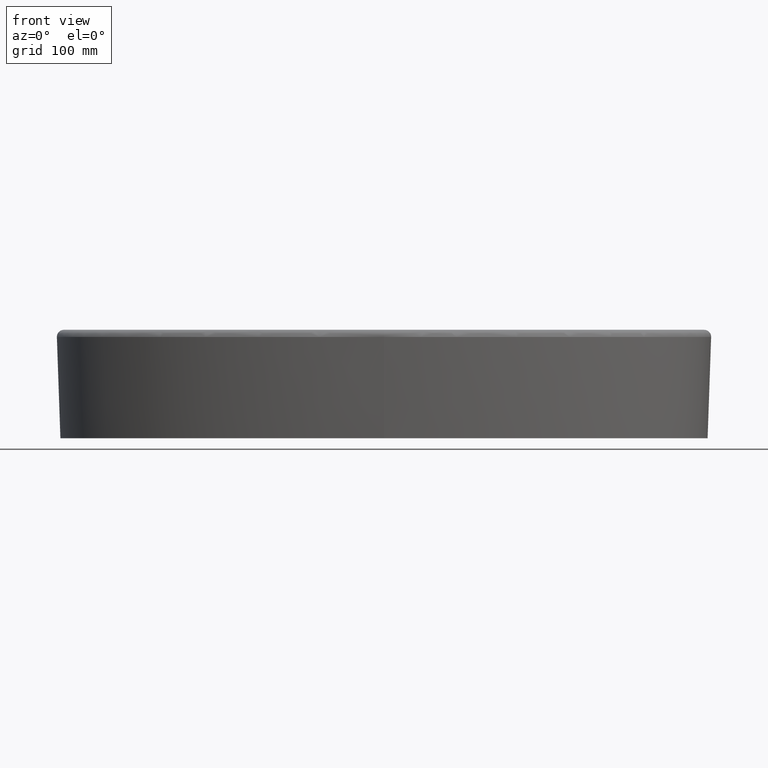
[diagram: clean part render]
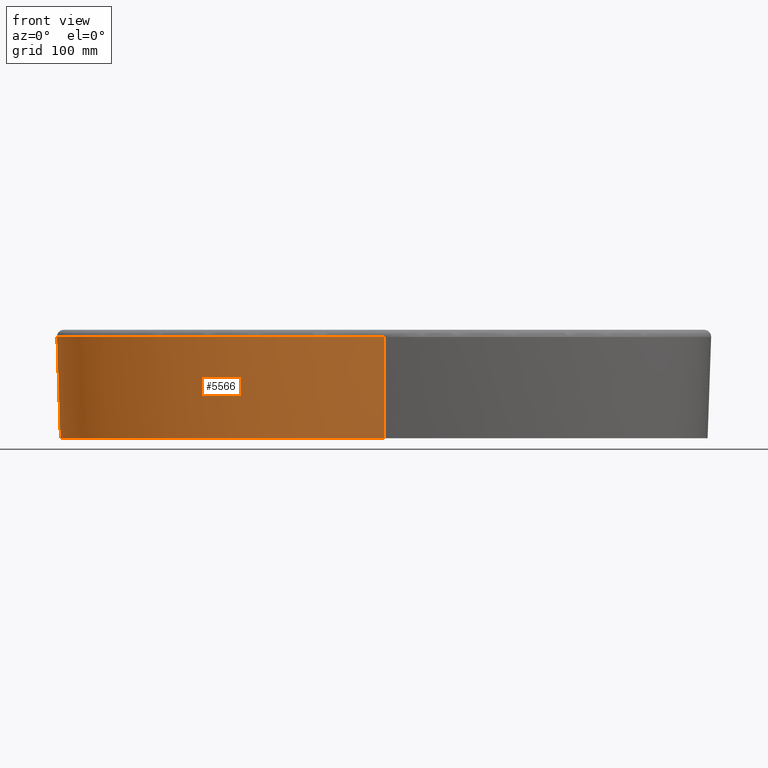
[diagram: same view with one face highlighted and labeled with its STEP entity id]
A machine part, front view. The second image highlights one B-rep face of the part: STEP entity #5566.
In plain terms, the highlighted face is a freeform B-spline surface patch.
Its self-contained STEP definition (entity closure, byte-faithful):
#81=CARTESIAN_POINT('',(-4.194525443808E2,0.E0,-4.230365081388E1));
#83=CARTESIAN_POINT('',(0.E0,-1.953686612645E2,-4.230365081388E1));
#84=CARTESIAN_POINT('',(-6.390078734488E0,-1.953686612645E2,-4.230365081388E1));
#85=CARTESIAN_POINT('',(-1.927423367266E1,-1.952414856898E2,-4.230365081388E1));
#86=CARTESIAN_POINT('',(-3.894134593559E1,-1.946465315961E2,-4.230365081388E1));
#87=CARTESIAN_POINT('',(-5.886269416731E1,-1.936232268164E2,-4.230365081388E1));
#88=CARTESIAN_POINT('',(-7.902981023851E1,-1.921467375728E2,-4.230365081388E1));
#89=CARTESIAN_POINT('',(-9.940199348522E1,-1.901926279955E2,-4.230365081388E1));
#90=CARTESIAN_POINT('',(-1.199289066717E2,-1.877345595200E2,-4.230365081388E1));
#91=CARTESIAN_POINT('',(-1.405763011321E2,-1.847427176877E2,-4.230365081388E1));
#92=CARTESIAN_POINT('',(-1.612811799456E2,-1.811904104770E2,-4.230365081388E1));
#93=CARTESIAN_POINT('',(-1.820358411745E2,-1.770358885918E2,-4.230365081388E1));
#94=CARTESIAN_POINT('',(-2.027856505125E2,-1.722410035786E2,-4.230365081388E1));
#95=CARTESIAN_POINT('',(-2.235655261066E2,-1.667327298035E2,-4.230365081388E1));
#96=CARTESIAN_POINT('',(-2.438600882349E2,-1.605859117585E2,-4.230365081388E1));
#97=CARTESIAN_POINT('',(-2.629866773549E2,-1.540112999850E2,-4.230365081388E1));
#98=CARTESIAN_POINT('',(-2.807779707198E2,-1.471184309083E2,-4.230365081388E1));
#99=CARTESIAN_POINT('',(-2.969813110931E2,-1.400851059263E2,-4.230365081388E1));
#100=CARTESIAN_POINT('',(-3.116154582678E2,-1.330113017561E2,
-4.230365081388E1));
#101=CARTESIAN_POINT('',(-3.248773171365E2,-1.259064551886E2,
-4.230365081388E1));
#102=CARTESIAN_POINT('',(-3.368546662556E2,-1.188078557271E2,
-4.230365081388E1));
#103=CARTESIAN_POINT('',(-3.475873266772E2,-1.117946935444E2,
-4.230365081388E1));
#104=CARTESIAN_POINT('',(-3.572161264681E2,-1.048592429480E2,
-4.230365081388E1));
#105=CARTESIAN_POINT('',(-3.658448418241E2,-9.801823620303E1,
-4.230365081388E1));
#106=CARTESIAN_POINT('',(-3.735715540142E2,-9.127231236528E1,
-4.230365081388E1));
#107=CARTESIAN_POINT('',(-3.804609217080E2,-8.463880541082E1,
-4.230365081388E1));
#108=CARTESIAN_POINT('',(-3.865984152923E2,-7.811178042358E1,
-4.230365081388E1));
#109=CARTESIAN_POINT('',(-3.920464700182E2,-7.169273104088E1,
-4.230365081388E1));
#110=CARTESIAN_POINT('',(-3.968758865228E2,-6.536178698670E1,
-4.230365081388E1));
#111=CARTESIAN_POINT('',(-4.011244873322E2,-5.913822926578E1,
-4.230365081388E1));
#112=CARTESIAN_POINT('',(-4.048494060959E2,-5.299474097294E1,
-4.230365081388E1));
#113=CARTESIAN_POINT('',(-4.080826056409E2,-4.692471368115E1,
-4.230365081388E1));
#114=CARTESIAN_POINT('',(-4.108652992586E2,-4.092593335232E1,
-4.230365081388E1));
#115=CARTESIAN_POINT('',(-4.132323550241E2,-3.496115844547E1,
-4.230365081388E1));
#116=CARTESIAN_POINT('',(-4.151954012158E2,-2.904328853641E1,
-4.230365081388E1));
#117=CARTESIAN_POINT('',(-4.167699693101E2,-2.318479513370E1,
-4.230365081388E1));
#118=CARTESIAN_POINT('',(-4.179787079916E2,-1.736679915768E1,
-4.230365081388E1));
#119=CARTESIAN_POINT('',(-4.188296415682E2,-1.157609250211E1,
-4.230365081388E1));
#120=CARTESIAN_POINT('',(-4.193388290851E2,-5.794749703103E0,
-4.230365081388E1));
#121=CARTESIAN_POINT('',(-4.194525443808E2,-1.932164904193E0,
-4.230365081388E1));
#122=CARTESIAN_POINT('',(-4.194525443808E2,0.E0,-4.230365081388E1));
#124=CARTESIAN_POINT('',(0.E0,-1.953686612645E2,-4.230365081388E1));
#1336=CARTESIAN_POINT('',(-2.145901512989E-14,-1.999492815385E2,
8.886815134171E1));
#1338=DIRECTION('',(0.E0,-3.489949675613E-2,9.993908270172E-1));
#1339=VECTOR('',#1338,1.312517571800E2);
#1340=CARTESIAN_POINT('',(0.E0,-1.953686612645E2,-4.230365081388E1));
#1341=LINE('',#1340,#1339);
#1485=DIRECTION('',(-3.489949675613E-2,0.E0,9.993908270172E-1));
#1486=VECTOR('',#1485,1.312517571800E2);
#1487=CARTESIAN_POINT('',(-4.194525443808E2,0.E0,-4.230365081388E1));
#1488=LINE('',#1487,#1486);
#1489=CARTESIAN_POINT('',(-2.145901512989E-14,-1.999492815385E2,
8.886815134171E1));
#1490=CARTESIAN_POINT('',(-9.251522877602E0,-1.999492667125E2,
8.886815078869E1));
#1491=CARTESIAN_POINT('',(-2.760523663096E1,-1.996843355951E2,
8.886815159705E1));
#1492=CARTESIAN_POINT('',(-5.474903543331E1,-1.985161926556E2,
8.886815127524E1));
#1493=CARTESIAN_POINT('',(-8.143617220225E1,-1.965909478353E2,
8.886815135185E1));
#1494=CARTESIAN_POINT('',(-1.074925659181E2,-1.939419801060E2,
8.886815131518E1));
#1495=CARTESIAN_POINT('',(-1.328116957956E2,-1.906009879179E2,
8.886815142914E1));
#1496=CARTESIAN_POINT('',(-1.572902913974E2,-1.866062920602E2,
8.886815112177E1));
#1497=CARTESIAN_POINT('',(-1.808277633740E2,-1.820019016534E2,
8.886815122395E1));
#1498=CARTESIAN_POINT('',(-2.033426734757E2,-1.768346437337E2,
8.886815138618E1));
#1499=CARTESIAN_POINT('',(-2.247628180962E2,-1.711561505794E2,
8.886815123483E1));
#1500=CARTESIAN_POINT('',(-2.450754675722E2,-1.650053374916E2,
8.886815091929E1));
#1501=CARTESIAN_POINT('',(-2.641751439984E2,-1.584506338371E2,
8.886815123454E1));
#1502=CARTESIAN_POINT('',(-2.818017043546E2,-1.516447314386E2,
8.886815114450E1));
#1503=CARTESIAN_POINT('',(-2.978844402702E2,-1.447029811291E2,
8.886815000469E1));
#1504=CARTESIAN_POINT('',(-3.121464574819E2,-1.378624159216E2,
8.886815278064E1));
#1505=CARTESIAN_POINT('',(-3.244618423632E2,-1.313569851788E2,
8.886814758957E1));
#1506=CARTESIAN_POINT('',(-3.350795654851E2,-1.252288435249E2,
8.886815235772E1));
#1507=CARTESIAN_POINT('',(-3.442794733424E2,-1.194690623518E2,
8.886814920881E1));
#1508=CARTESIAN_POINT('',(-3.522617616444E2,-1.140772267167E2,
8.886814428330E1));
#1509=CARTESIAN_POINT('',(-3.592035061867E2,-1.090403310764E2,
8.886815011560E1));
#1510=CARTESIAN_POINT('',(-3.652536800859E2,-1.043491528786E2,
8.886815199064E1));
#1511=CARTESIAN_POINT('',(-3.705434248905E2,-9.998414570977E1,
8.886815125236E1));
#1512=CARTESIAN_POINT('',(-3.751769265786E2,-9.592904285089E1,
8.886815104776E1));
#1513=CARTESIAN_POINT('',(-3.792472648128E2,-9.216382881668E1,
8.886815024872E1));
#1514=CARTESIAN_POINT('',(-3.828281128367E2,-8.867289454796E1,
8.886815170108E1));
#1515=CARTESIAN_POINT('',(-3.859851969462E2,-8.544019013116E1,
8.886815076971E1));
#1516=CARTESIAN_POINT('',(-3.887828401835E2,-8.243903580350E1,
8.886815005097E1));
#1517=CARTESIAN_POINT('',(-3.912701148994E2,-7.964994386197E1,
8.886815087079E1));
#1518=CARTESIAN_POINT('',(-3.934743071221E2,-7.707264191454E1,
8.886815150134E1));
#1519=CARTESIAN_POINT('',(-3.954104663215E2,-7.471862064433E1,
8.886815072465E1));
#1520=CARTESIAN_POINT('',(-3.971168404818E2,-7.256715685644E1,
8.886815058776E1));
#1521=CARTESIAN_POINT('',(-3.986552179950E2,-7.056035328287E1,
8.886815110696E1));
#1522=CARTESIAN_POINT('',(-4.000945971071E2,-6.862010485864E1,
8.886815192077E1));
#1523=CARTESIAN_POINT('',(-4.014934762667E2,-6.667129316399E1,
8.886815239426E1));
#1524=CARTESIAN_POINT('',(-4.028782840946E2,-6.467517886956E1,
8.886815114821E1));
#1525=CARTESIAN_POINT('',(-4.042438010697E2,-6.263493050489E1,
8.886814740752E1));
#1526=CARTESIAN_POINT('',(-4.055475151547E2,-6.061222765127E1,
8.886814362206E1));
#1527=CARTESIAN_POINT('',(-4.067614562076E2,-5.865651740641E1,
8.886814103060E1));
#1528=CARTESIAN_POINT('',(-4.079111383302E2,-5.673386528465E1,
8.886814012952E1));
#1529=CARTESIAN_POINT('',(-4.090387304594E2,-5.477456111203E1,
8.886814102728E1));
#1530=CARTESIAN_POINT('',(-4.101863701619E2,-5.269727045562E1,
8.886814369031E1));
#1531=CARTESIAN_POINT('',(-4.113729139124E2,-5.044922606227E1,
8.886814768025E1));
#1532=CARTESIAN_POINT('',(-4.125533482456E2,-4.809661616210E1,
8.886815131236E1));
#1533=CARTESIAN_POINT('',(-4.136758439046E2,-4.573694821779E1,
8.886815198470E1));
#1534=CARTESIAN_POINT('',(-4.147114812534E2,-4.343625325106E1,
8.886815185181E1));
#1535=CARTESIAN_POINT('',(-4.156627743795E2,-4.120166515953E1,
8.886815181917E1));
#1536=CARTESIAN_POINT('',(-4.165624362112E2,-3.896384334200E1,
8.886815201488E1));
#1537=CARTESIAN_POINT('',(-4.174446901474E2,-3.663139364969E1,
8.886815143582E1));
#1538=CARTESIAN_POINT('',(-4.183390229450E2,-3.409765802974E1,
8.886815043832E1));
#1539=CARTESIAN_POINT('',(-4.192284408060E2,-3.136165276855E1,
8.886815030881E1));
#1540=CARTESIAN_POINT('',(-4.200526920985E2,-2.857769131647E1,
8.886815115781E1));
#1541=CARTESIAN_POINT('',(-4.207927222514E2,-2.581557994731E1,
8.886815160414E1));
#1542=CARTESIAN_POINT('',(-4.214616970828E2,-2.303293168266E1,
8.886815011302E1));
#1543=CARTESIAN_POINT('',(-4.220631418345E2,-2.019742404815E1,
8.886814970963E1));
#1544=CARTESIAN_POINT('',(-4.225946352991E2,-1.729917450502E1,
8.886815092104E1));
#1545=CARTESIAN_POINT('',(-4.230565939731E2,-1.429911238109E1,
8.886815225631E1));
#1546=CARTESIAN_POINT('',(-4.234403283687E2,-1.121095347439E1,
8.886814974580E1));
#1547=CARTESIAN_POINT('',(-4.237486252753E2,-7.915026668989E0,
8.886814583728E1));
#1548=CARTESIAN_POINT('',(-4.239699707075E2,-4.259646559907E0,
8.886814702189E1));
#1549=CARTESIAN_POINT('',(-4.240331644166E2,-1.479807133117E0,
8.886815139744E1));
#1550=CARTESIAN_POINT('',(-4.240331646548E2,3.538388127161E-13,
8.886815134171E1));
#1559=VERTEX_POINT('',#124);
#1560=VERTEX_POINT('',#81);
#1574=VERTEX_POINT('',#1336);
#1577=VERTEX_POINT('',#1550);
#5422=CARTESIAN_POINT('',(5.003488529128E0,-1.952640679262E2,
-4.492708687397E1));
#5423=CARTESIAN_POINT('',(5.011726194649E0,-1.968519949694E2,
5.458048342947E-1));
#5424=CARTESIAN_POINT('',(5.019963860169E0,-1.984399220125E2,4.601869654256E1));
#5425=CARTESIAN_POINT('',(5.028201525690E0,-2.000278490556E2,9.149158825083E1));
#5426=CARTESIAN_POINT('',(3.331315803719E0,-1.952727400615E2,
-4.492708687397E1));
#5427=CARTESIAN_POINT('',(3.336803967534E0,-1.968606813369E2,
5.458048342947E-1));
#5428=CARTESIAN_POINT('',(3.342292131349E0,-1.984486226123E2,4.601869654256E1));
#5429=CARTESIAN_POINT('',(3.347780295165E0,-2.000365638877E2,9.149158825083E1));
#5430=CARTESIAN_POINT('',(-4.133074326602E-1,-1.952824143253E2,
-4.492708687397E1));
#5431=CARTESIAN_POINT('',(-4.139844449E-1,-1.968703715340E2,5.458048342947E-1));
#5432=CARTESIAN_POINT('',(-4.146614571398E-1,-1.984583287428E2,
4.601869654256E1));
#5433=CARTESIAN_POINT('',(-4.153384693796E-1,-2.000462859515E2,
9.149158825083E1));
#5434=CARTESIAN_POINT('',(-8.265821810330E0,-1.952570050500E2,
-4.492708687397E1));
#5435=CARTESIAN_POINT('',(-8.279464053745E0,-1.968449204101E2,
5.458048342947E-1));
#5436=CARTESIAN_POINT('',(-8.293106297160E0,-1.984328357701E2,
4.601869654256E1));
#5437=CARTESIAN_POINT('',(-8.306748540576E0,-2.000207511302E2,
9.149158825083E1));
#5438=CARTESIAN_POINT('',(-1.746894828707E1,-1.951381639185E2,
-4.492708687397E1));
#5439=CARTESIAN_POINT('',(-1.749785557550E1,-1.967258822297E2,
5.458048342947E-1));
#5440=CARTESIAN_POINT('',(-1.752676286394E1,-1.983136005409E2,
4.601869654256E1));
#5441=CARTESIAN_POINT('',(-1.755567015238E1,-1.999013188522E2,
9.149158825083E1));
#5442=CARTESIAN_POINT('',(-2.758462823049E1,-1.948948438865E2,
-4.492708687397E1));
#5443=CARTESIAN_POINT('',(-2.763032600880E1,-1.964821585431E2,
5.458048342947E-1));
#5444=CARTESIAN_POINT('',(-2.767602378712E1,-1.980694731996E2,
4.601869654256E1));
#5445=CARTESIAN_POINT('',(-2.772172156543E1,-1.996567878561E2,
9.149158825083E1));
#5446=CARTESIAN_POINT('',(-3.660559888017E1,-1.945919480110E2,
-4.492708687397E1));
#5447=CARTESIAN_POINT('',(-3.666642128694E1,-1.961787552190E2,
5.458048342947E-1));
#5448=CARTESIAN_POINT('',(-3.672724369371E1,-1.977655624271E2,
4.601869654256E1));
#5449=CARTESIAN_POINT('',(-3.678806610047E1,-1.993523696351E2,
9.149158825083E1));
#5450=CARTESIAN_POINT('',(-4.554482485875E1,-1.942064095924E2,
-4.492708687397E1));
#5451=CARTESIAN_POINT('',(-4.562078231017E1,-1.957925644185E2,
5.458048342947E-1));
#5452=CARTESIAN_POINT('',(-4.569673976159E1,-1.973787192446E2,
4.601869654256E1));
#5453=CARTESIAN_POINT('',(-4.577269721302E1,-1.989648740707E2,
9.149158825083E1));
#5454=CARTESIAN_POINT('',(-5.735685618770E1,-1.935840034104E2,
-4.492708687397E1));
#5455=CARTESIAN_POINT('',(-5.745299967079E1,-1.951690948469E2,
5.458048342947E-1));
#5456=CARTESIAN_POINT('',(-5.754914315388E1,-1.967541862835E2,
4.601869654256E1));
#5457=CARTESIAN_POINT('',(-5.764528663697E1,-1.983392777201E2,
9.149158825083E1));
#5458=CARTESIAN_POINT('',(-7.192542638427E1,-1.926061736413E2,
-4.492708687397E1));
#5459=CARTESIAN_POINT('',(-7.204671321387E1,-1.941895797918E2,
5.458048342947E-1));
#5460=CARTESIAN_POINT('',(-7.216800004346E1,-1.957729859423E2,
4.601869654256E1));
#5461=CARTESIAN_POINT('',(-7.228928687306E1,-1.973563920928E2,
9.149158825083E1));
#5462=CARTESIAN_POINT('',(-8.910448318884E1,-1.911239412325E2,
-4.492708687397E1));
#5463=CARTESIAN_POINT('',(-8.925606550700E1,-1.927047367462E2,
5.458048342947E-1));
#5464=CARTESIAN_POINT('',(-8.940764782516E1,-1.942855322598E2,
4.601869654256E1));
#5465=CARTESIAN_POINT('',(-8.955923014332E1,-1.958663277735E2,
9.149158825083E1));
#5466=CARTESIAN_POINT('',(-1.059875014089E2,-1.893386107438E2,
-4.492708687397E1));
#5467=CARTESIAN_POINT('',(-1.061696968301E2,-1.909161737467E2,
5.458048342947E-1));
#5468=CARTESIAN_POINT('',(-1.063518922514E2,-1.924937367496E2,
4.601869654256E1));
#5469=CARTESIAN_POINT('',(-1.065340876726E2,-1.940712997525E2,
9.149158825083E1));
#5470=CARTESIAN_POINT('',(-1.225820614776E2,-1.872559169578E2,
-4.492708687397E1));
#5471=CARTESIAN_POINT('',(-1.227952585271E2,-1.888295936953E2,
5.458048342947E-1));
#5472=CARTESIAN_POINT('',(-1.230084555766E2,-1.904032704329E2,
4.601869654256E1));
#5473=CARTESIAN_POINT('',(-1.232216526261E2,-1.919769471705E2,
9.149158825083E1));
#5474=CARTESIAN_POINT('',(-1.443289844300E2,-1.840862590545E2,
-4.492708687397E1));
#5475=CARTESIAN_POINT('',(-1.445841939546E2,-1.856538199175E2,
5.458048342947E-1));
#5476=CARTESIAN_POINT('',(-1.448394034792E2,-1.872213807806E2,
4.601869654256E1));
#5477=CARTESIAN_POINT('',(-1.450946130039E2,-1.887889416436E2,
9.149158825083E1));
#5478=CARTESIAN_POINT('',(-1.708118257441E2,-1.793949301946E2,
-4.492708687397E1));
#5479=CARTESIAN_POINT('',(-1.711211557534E2,-1.809529510836E2,
5.458048342947E-1));
#5480=CARTESIAN_POINT('',(-1.714304857627E2,-1.825109719726E2,
4.601869654256E1));
#5481=CARTESIAN_POINT('',(-1.717398157719E2,-1.840689928616E2,
9.149158825083E1));
#5482=CARTESIAN_POINT('',(-2.014829428317E2,-1.725958987366E2,
-4.492708687397E1));
#5483=CARTESIAN_POINT('',(-2.018609248659E2,-1.741387801501E2,
5.458048342947E-1));
#5484=CARTESIAN_POINT('',(-2.022389069002E2,-1.756816615635E2,
4.601869654256E1));
#5485=CARTESIAN_POINT('',(-2.026168889344E2,-1.772245429770E2,
9.149158825083E1));
#5486=CARTESIAN_POINT('',(-2.310374552381E2,-1.646004129507E2,
-4.492708687397E1));
#5487=CARTESIAN_POINT('',(-2.314891128087E2,-1.661234733536E2,
5.458048342947E-1));
#5488=CARTESIAN_POINT('',(-2.319407703793E2,-1.676465337564E2,
4.601869654256E1));
#5489=CARTESIAN_POINT('',(-2.323924279499E2,-1.691695941592E2,
9.149158825083E1));
#5490=CARTESIAN_POINT('',(-2.594460503939E2,-1.553533383060E2,
-4.492708687397E1));
#5491=CARTESIAN_POINT('',(-2.599780343573E2,-1.568504102966E2,
5.458048342947E-1));
#5492=CARTESIAN_POINT('',(-2.605100183207E2,-1.583474822871E2,
4.601869654256E1));
#5493=CARTESIAN_POINT('',(-2.610420022841E2,-1.598445542776E2,
9.149158825083E1));
#5494=CARTESIAN_POINT('',(-2.866537568021E2,-1.447650396285E2,
-4.492708687397E1));
#5495=CARTESIAN_POINT('',(-2.872747192830E2,-1.462277273145E2,
5.458048342947E-1));
#5496=CARTESIAN_POINT('',(-2.878956817639E2,-1.476904150005E2,
4.601869654256E1));
#5497=CARTESIAN_POINT('',(-2.885166442448E2,-1.491531026866E2,
9.149158825083E1));
#5498=CARTESIAN_POINT('',(-3.125753021148E2,-1.326983379896E2,
-4.492708687397E1));
#5499=CARTESIAN_POINT('',(-3.132966199831E2,-1.341146796706E2,
5.458048342947E-1));
#5500=CARTESIAN_POINT('',(-3.140179378514E2,-1.355310213516E2,
4.601869654256E1));
#5501=CARTESIAN_POINT('',(-3.147392557197E2,-1.369473630326E2,
9.149158825083E1));
#5502=CARTESIAN_POINT('',(-3.370753045413E2,-1.189485272601E2,
-4.492708687397E1));
#5503=CARTESIAN_POINT('',(-3.379112763215E2,-1.203011644791E2,
5.458048342947E-1));
#5504=CARTESIAN_POINT('',(-3.387472481018E2,-1.216538016981E2,
4.601869654256E1));
#5505=CARTESIAN_POINT('',(-3.395832198820E2,-1.230064389171E2,
9.149158825083E1));
#5506=CARTESIAN_POINT('',(-3.559930218963E2,-1.059298691679E2,
-4.492708687397E1));
#5507=CARTESIAN_POINT('',(-3.569398505955E2,-1.072072069632E2,
5.458048342947E-1));
#5508=CARTESIAN_POINT('',(-3.578866792947E2,-1.084845447585E2,
4.601869654256E1));
#5509=CARTESIAN_POINT('',(-3.588335079939E2,-1.097618825538E2,
9.149158825083E1));
#5510=CARTESIAN_POINT('',(-3.702789166136E2,-9.419716713378E1,
-4.492708687397E1));
#5511=CARTESIAN_POINT('',(-3.713257289790E2,-9.539270034285E1,
5.458048342947E-1));
#5512=CARTESIAN_POINT('',(-3.723725413443E2,-9.658823355192E1,
4.601869654256E1));
#5513=CARTESIAN_POINT('',(-3.734193537097E2,-9.778376676099E1,
9.149158825083E1));
#5514=CARTESIAN_POINT('',(-3.803064392910E2,-8.480485546350E1,
-4.492708687397E1));
#5515=CARTESIAN_POINT('',(-3.814334214609E2,-8.592567581856E1,
5.458048342947E-1));
#5516=CARTESIAN_POINT('',(-3.825604036307E2,-8.704649617362E1,
4.601869654256E1));
#5517=CARTESIAN_POINT('',(-3.836873858006E2,-8.816731652867E1,
9.149158825083E1));
#5518=CARTESIAN_POINT('',(-3.899530399035E2,-7.430359479230E1,
-4.492708687397E1));
#5519=CARTESIAN_POINT('',(-3.911681206797E2,-7.532899206759E1,
5.458048342947E-1));
#5520=CARTESIAN_POINT('',(-3.923832014559E2,-7.635438934289E1,
4.601869654256E1));
#5521=CARTESIAN_POINT('',(-3.935982822321E2,-7.737978661818E1,
9.149158825083E1));
#5522=CARTESIAN_POINT('',(-3.995230502780E2,-6.187917337462E1,
-4.492708687397E1));
#5523=CARTESIAN_POINT('',(-4.008383337398E2,-6.277538341294E1,
5.458048342947E-1));
#5524=CARTESIAN_POINT('',(-4.021536172016E2,-6.367159345126E1,
4.601869654256E1));
#5525=CARTESIAN_POINT('',(-4.034689006634E2,-6.456780348957E1,
9.149158825083E1));
#5526=CARTESIAN_POINT('',(-4.071386162165E2,-4.914596675795E1,
-4.492708687397E1));
#5527=CARTESIAN_POINT('',(-4.085476689429E2,-4.988759721188E1,
5.458048342947E-1));
#5528=CARTESIAN_POINT('',(-4.099567216694E2,-5.062922766580E1,
4.601869654256E1));
#5529=CARTESIAN_POINT('',(-4.113657743958E2,-5.137085811973E1,
9.149158825083E1));
#5530=CARTESIAN_POINT('',(-4.127597904064E2,-3.633203893912E1,
-4.492708687397E1));
#5531=CARTESIAN_POINT('',(-4.142464698709E2,-3.689755043830E1,
5.458048342947E-1));
#5532=CARTESIAN_POINT('',(-4.157331493354E2,-3.746306193747E1,
4.601869654256E1));
#5533=CARTESIAN_POINT('',(-4.172198287999E2,-3.802857343665E1,
9.149158825083E1));
#5534=CARTESIAN_POINT('',(-4.162240588998E2,-2.564513784632E1,
-4.492708687397E1));
#5535=CARTESIAN_POINT('',(-4.177623448288E2,-2.605249898738E1,
5.458048342947E-1));
#5536=CARTESIAN_POINT('',(-4.193006307578E2,-2.645986012843E1,
4.601869654256E1));
#5537=CARTESIAN_POINT('',(-4.208389166867E2,-2.686722126949E1,
9.149158825083E1));
#5538=CARTESIAN_POINT('',(-4.182468402968E2,-1.574960983424E1,
-4.492708687397E1));
#5539=CARTESIAN_POINT('',(-4.198168505491E2,-1.600248957346E1,
5.458048342947E-1));
#5540=CARTESIAN_POINT('',(-4.213868608015E2,-1.625536931268E1,
4.601869654256E1));
#5541=CARTESIAN_POINT('',(-4.229568710538E2,-1.650824905190E1,
9.149158825083E1));
#5542=CARTESIAN_POINT('',(-4.191719792064E2,-7.257451890810E0,
-4.492708687397E1));
#5543=CARTESIAN_POINT('',(-4.207569694950E2,-7.373893826856E0,
5.458048342947E-1));
#5544=CARTESIAN_POINT('',(-4.223419597836E2,-7.490335762901E0,
4.601869654256E1));
#5545=CARTESIAN_POINT('',(-4.239269500722E2,-7.606777698946E0,
9.149158825083E1));
#5546=CARTESIAN_POINT('',(-4.194247375445E2,-9.571687646971E-1,
-4.492708687397E1));
#5547=CARTESIAN_POINT('',(-4.210136848020E2,-9.725551374975E-1,
5.458048342947E-1));
#5548=CARTESIAN_POINT('',(-4.226026320594E2,-9.879415102978E-1,
4.601869654256E1));
#5549=CARTESIAN_POINT('',(-4.241915793169E2,-1.003327883098E0,
9.149158825083E1));
#5550=CARTESIAN_POINT('',(-4.193194976201E2,3.350259940283E0,
-4.492708687397E1));
#5551=CARTESIAN_POINT('',(-4.209067973311E2,3.404055284544E0,
5.458048342947E-1));
#5552=CARTESIAN_POINT('',(-4.224940970421E2,3.457850628804E0,4.601869654256E1));
#5553=CARTESIAN_POINT('',(-4.240813967531E2,3.511645973065E0,9.149158825083E1));
#5554=CARTESIAN_POINT('',(-4.192313529069E2,5.092875036056E0,
-4.492708687397E1));
#5555=CARTESIAN_POINT('',(-4.208172918307E2,5.174689558917E0,
5.458048342947E-1));
#5556=CARTESIAN_POINT('',(-4.224032307545E2,5.256504081777E0,4.601869654256E1));
#5557=CARTESIAN_POINT('',(-4.239891696783E2,5.338318604638E0,9.149158825083E1));
#5558=B_SPLINE_SURFACE_WITH_KNOTS('',3,3,((#5422,#5423,#5424,#5425),(#5426,
#5427,#5428,#5429),(#5430,#5431,#5432,#5433),(#5434,#5435,#5436,#5437),(#5438,
#5439,#5440,#5441),(#5442,#5443,#5444,#5445),(#5446,#5447,#5448,#5449),(#5450,
#5451,#5452,#5453),(#5454,#5455,#5456,#5457),(#5458,#5459,#5460,#5461),(#5462,
#5463,#5464,#5465),(#5466,#5467,#5468,#5469),(#5470,#5471,#5472,#5473),(#5474,
#5475,#5476,#5477),(#5478,#5479,#5480,#5481),(#5482,#5483,#5484,#5485),(#5486,
#5487,#5488,#5489),(#5490,#5491,#5492,#5493),(#5494,#5495,#5496,#5497),(#5498,
#5499,#5500,#5501),(#5502,#5503,#5504,#5505),(#5506,#5507,#5508,#5509),(#5510,
#5511,#5512,#5513),(#5514,#5515,#5516,#5517),(#5518,#5519,#5520,#5521),(#5522,
#5523,#5524,#5525),(#5526,#5527,#5528,#5529),(#5530,#5531,#5532,#5533),(#5534,
#5535,#5536,#5537),(#5538,#5539,#5540,#5541),(#5542,#5543,#5544,#5545),(#5546,
#5547,#5548,#5549),(#5550,#5551,#5552,#5553),(#5554,#5555,#5556,#5557)),
.UNSPECIFIED.,.F.,.F.,.F.,(4,1,1,1,1,1,1,1,1,1,1,1,1,1,1,1,1,1,1,1,1,1,1,1,1,1,
1,1,1,1,1,4),(4,4),(-8.365218465723E-3,0.E0,1.041666666667E-2,3.125E-2,
4.6875E-2,6.25E-2,7.8125E-2,9.375E-2,1.25E-1,1.5625E-1,1.875E-1,2.1875E-1,
2.5E-1,3.125E-1,3.75E-1,4.375E-1,5.E-1,5.625E-1,6.25E-1,6.875E-1,7.5E-1,7.8E-1,
8.125E-1,8.425E-1,8.75E-1,9.15E-1,9.358E-1,9.583333333333E-1,9.783333333333E-1,
9.887333333333E-1,1.E0,1.007316399877E0),(1.747267063786E-2,9.540648068233E-1),
.UNSPECIFIED.);
#5560=ORIENTED_EDGE('',*,*,#5559,.F.);
#5561=ORIENTED_EDGE('',*,*,#4599,.F.);
#5562=ORIENTED_EDGE('',*,*,#1606,.T.);
#5563=ORIENTED_EDGE('',*,*,#5415,.T.);
#5564=EDGE_LOOP('',(#5560,#5561,#5562,#5563));
#5565=FACE_OUTER_BOUND('',#5564,.F.);
#5566=ADVANCED_FACE('',(#5565),#5558,.F.);
#123=B_SPLINE_CURVE_WITH_KNOTS('',3,(#83,#84,#85,#86,#87,#88,#89,#90,#91,#92,
#93,#94,#95,#96,#97,#98,#99,#100,#101,#102,#103,#104,#105,#106,#107,#108,#109,
#110,#111,#112,#113,#114,#115,#116,#117,#118,#119,#120,#121,#122),.UNSPECIFIED.,
.F.,.F.,(4,1,1,1,1,1,1,1,1,1,1,1,1,1,1,1,1,1,1,1,1,1,1,1,1,1,1,1,1,1,1,1,1,1,1,
1,1,4),(0.E0,2.702702702703E-2,5.405405405405E-2,8.108108108108E-2,
1.081081081081E-1,1.351351351351E-1,1.621621621622E-1,1.891891891892E-1,
2.162162162162E-1,2.432432432432E-1,2.702702702703E-1,2.972972972973E-1,
3.243243243243E-1,3.513513513514E-1,3.783783783784E-1,4.054054054054E-1,
4.324324324324E-1,4.594594594595E-1,4.864864864865E-1,5.135135135135E-1,
5.405405405405E-1,5.675675675676E-1,5.945945945946E-1,6.216216216216E-1,
6.486486486486E-1,6.756756756757E-1,7.027027027027E-1,7.297297297297E-1,
7.567567567568E-1,7.837837837838E-1,8.108108108108E-1,8.378378378378E-1,
8.648648648649E-1,8.918918918919E-1,9.189189189189E-1,9.459459459459E-1,
9.729729729730E-1,1.E0),.UNSPECIFIED.);
#1551=B_SPLINE_CURVE_WITH_KNOTS('',3,(#1489,#1490,#1491,#1492,#1493,#1494,#1495,
#1496,#1497,#1498,#1499,#1500,#1501,#1502,#1503,#1504,#1505,#1506,#1507,#1508,
#1509,#1510,#1511,#1512,#1513,#1514,#1515,#1516,#1517,#1518,#1519,#1520,#1521,
#1522,#1523,#1524,#1525,#1526,#1527,#1528,#1529,#1530,#1531,#1532,#1533,#1534,
#1535,#1536,#1537,#1538,#1539,#1540,#1541,#1542,#1543,#1544,#1545,#1546,#1547,
#1548,#1549,#1550),.UNSPECIFIED.,.F.,.F.,(4,1,1,1,1,1,1,1,1,1,1,1,1,1,1,1,1,1,1,
1,1,1,1,1,1,1,1,1,1,1,1,1,1,1,1,1,1,1,1,1,1,1,1,1,1,1,1,1,1,1,1,1,1,1,1,1,1,1,1,
4),(0.E0,1.694915254237E-2,3.389830508475E-2,5.084745762712E-2,
6.779661016949E-2,8.474576271186E-2,1.016949152542E-1,1.186440677966E-1,
1.355932203390E-1,1.525423728814E-1,1.694915254237E-1,1.864406779661E-1,
2.033898305085E-1,2.203389830508E-1,2.372881355932E-1,2.542372881356E-1,
2.711864406780E-1,2.881355932203E-1,3.050847457627E-1,3.220338983051E-1,
3.389830508475E-1,3.559322033898E-1,3.728813559322E-1,3.898305084746E-1,
4.067796610169E-1,4.237288135593E-1,4.406779661017E-1,4.576271186441E-1,
4.745762711864E-1,4.915254237288E-1,5.084745762712E-1,5.254237288136E-1,
5.423728813559E-1,5.593220338983E-1,5.762711864407E-1,5.932203389831E-1,
6.101694915254E-1,6.271186440678E-1,6.440677966102E-1,6.610169491525E-1,
6.779661016949E-1,6.949152542373E-1,7.118644067797E-1,7.288135593220E-1,
7.457627118644E-1,7.627118644068E-1,7.796610169492E-1,7.966101694915E-1,
8.135593220339E-1,8.305084745763E-1,8.474576271186E-1,8.644067796610E-1,
8.813559322034E-1,8.983050847458E-1,9.152542372881E-1,9.322033898305E-1,
9.491525423729E-1,9.661016949153E-1,9.830508474576E-1,1.E0),.UNSPECIFIED.);
#1606=EDGE_CURVE('',#1559,#1560,#123,.T.);
#4599=EDGE_CURVE('',#1559,#1574,#1341,.T.);
#5415=EDGE_CURVE('',#1560,#1577,#1488,.T.);
#5559=EDGE_CURVE('',#1574,#1577,#1551,.T.);